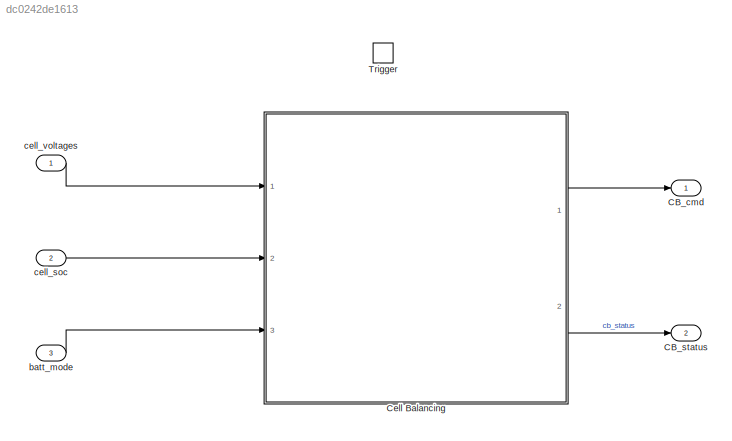
MODEL slx_dc0242de1613
KIND model
CONFIG AbsTol = auto
CONFIG FixedStep = cblk_stepSize
CONFIG MaxStep = auto
CONFIG MinStep = auto
CONFIG RelTol = 1e-3
CONFIG SampleTimeConstraint = Unconstrained
CONFIG Solver = FixedStepAuto
CONFIG SolverMode = Auto
CONFIG SolverName = FixedStepAuto
CONFIG StartTime = 0.0
CONFIG StopTime = 10.0
BLOCK [Outport] CB_cmd
  IconDisplay = Port number
BLOCK [Outport] CB_status
  IconDisplay = Port number
  Port = 2
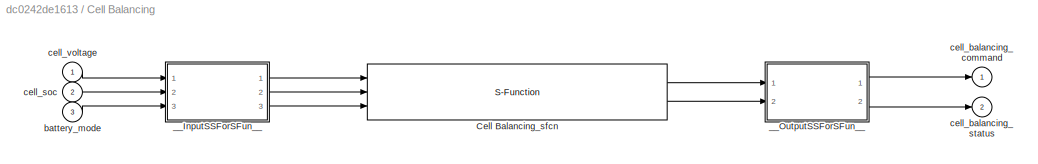
BLOCK [SubSystem] Cell Balancing
  Ports = [3, 2]
  RequestExecContextInheritance = off
  Variant = off
BLOCK [S-Function] Cell Balancing/Cell Balancing_sfcn
  CopyFcn = if ~strcmp(get_param(gcb,'Linkstatus'),'none') && ...\n~strcmp(get_param(gcb,'Linkstatus'),'implicit')      \n  set_param(gcb,'LinkStatus','none');                \nend
  EnableBusSupport = off
  FunctionName = Cell0_sf
  Parameters = sfcnParam1, sfcnParam2, sfcnParam3
  Ports = [3, 2]
  SFunctionDeploymentMode = off
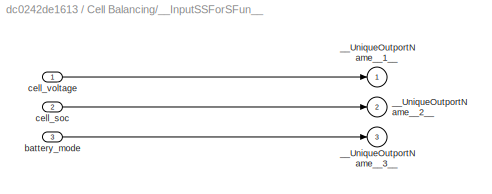
BLOCK [SubSystem] Cell Balancing/__InputSSForSFun__
  PermitHierarchicalResolution = ExplicitOnly
  Ports = [3, 3]
  RequestExecContextInheritance = off
  Variant = off
BLOCK [Outport] Cell Balancing/__InputSSForSFun__/__UniqueOutportName__1__
  IconDisplay = Port number
BLOCK [Outport] Cell Balancing/__InputSSForSFun__/__UniqueOutportName__2__
  IconDisplay = Port number
  Port = 2
BLOCK [Outport] Cell Balancing/__InputSSForSFun__/__UniqueOutportName__3__
  IconDisplay = Port number
  Port = 3
BLOCK [Inport] Cell Balancing/__InputSSForSFun__/battery_mode
  IconDisplay = Port number
  Port = 3
BLOCK [Inport] Cell Balancing/__InputSSForSFun__/cell_soc
  IconDisplay = Port number
  Port = 2
  PortDimensions = 40
BLOCK [Inport] Cell Balancing/__InputSSForSFun__/cell_voltage
  IconDisplay = Port number
  PortDimensions = 40
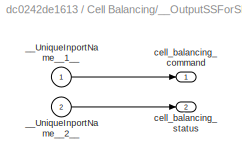
BLOCK [SubSystem] Cell Balancing/__OutputSSForSFun__
  PermitHierarchicalResolution = ExplicitOnly
  Ports = [2, 2]
  RequestExecContextInheritance = off
  Variant = off
BLOCK [Inport] Cell Balancing/__OutputSSForSFun__/__UniqueInportName__1__
  IconDisplay = Port number
BLOCK [Inport] Cell Balancing/__OutputSSForSFun__/__UniqueInportName__2__
  IconDisplay = Port number
  Port = 2
BLOCK [Outport] Cell Balancing/__OutputSSForSFun__/cell_balancing_command
  IconDisplay = Port number
BLOCK [Outport] Cell Balancing/__OutputSSForSFun__/cell_balancing_status
  IconDisplay = Port number
  Port = 2
BLOCK [Inport] Cell Balancing/battery_mode
  IconDisplay = Port number
  Port = 3
BLOCK [Outport] Cell Balancing/cell_balancing_command
  IconDisplay = Port number
BLOCK [Outport] Cell Balancing/cell_balancing_status
  IconDisplay = Port number
  Port = 2
BLOCK [Inport] Cell Balancing/cell_soc
  IconDisplay = Port number
  Port = 2
  PortDimensions = 40
BLOCK [Inport] Cell Balancing/cell_voltage
  IconDisplay = Port number
  PortDimensions = 40
BLOCK [TriggerPort] Trigger
  PortDimensions = 1
  Ports = []
  StatesWhenEnabling = held
  TriggerType = function-call
BLOCK [Inport] batt_mode
  IconDisplay = Port number
  OutDataTypeStr = uint8
  Port = 3
BLOCK [Inport] cell_soc
  IconDisplay = Port number
  Port = 2
BLOCK [Inport] cell_voltages
  IconDisplay = Port number
LINE Cell Balancing/Cell Balancing_sfcn:1 -> Cell Balancing/__OutputSSForSFun__:1
LINE Cell Balancing/Cell Balancing_sfcn:2 -> Cell Balancing/__OutputSSForSFun__:2
LINE Cell Balancing/__InputSSForSFun__/battery_mode:1 -> Cell Balancing/__InputSSForSFun__/__UniqueOutportName__3__:1
LINE Cell Balancing/__InputSSForSFun__/cell_soc:1 -> Cell Balancing/__InputSSForSFun__/__UniqueOutportName__2__:1
LINE Cell Balancing/__InputSSForSFun__/cell_voltage:1 -> Cell Balancing/__InputSSForSFun__/__UniqueOutportName__1__:1
LINE Cell Balancing/__InputSSForSFun__:1 -> Cell Balancing/Cell Balancing_sfcn:1
LINE Cell Balancing/__InputSSForSFun__:2 -> Cell Balancing/Cell Balancing_sfcn:2
LINE Cell Balancing/__InputSSForSFun__:3 -> Cell Balancing/Cell Balancing_sfcn:3
LINE Cell Balancing/__OutputSSForSFun__/__UniqueInportName__1__:1 -> Cell Balancing/__OutputSSForSFun__/cell_balancing_command:1
LINE Cell Balancing/__OutputSSForSFun__/__UniqueInportName__2__:1 -> Cell Balancing/__OutputSSForSFun__/cell_balancing_status:1
LINE Cell Balancing/__OutputSSForSFun__:1 -> Cell Balancing/cell_balancing_command:1
LINE Cell Balancing/__OutputSSForSFun__:2 -> Cell Balancing/cell_balancing_status:1
LINE Cell Balancing/battery_mode:1 -> Cell Balancing/__InputSSForSFun__:3
LINE Cell Balancing/cell_soc:1 -> Cell Balancing/__InputSSForSFun__:2
LINE Cell Balancing/cell_voltage:1 -> Cell Balancing/__InputSSForSFun__:1
LINE Cell Balancing:1 -> CB_cmd:1
LINE Cell Balancing:2 -> CB_status:1
LINE batt_mode:1 -> Cell Balancing:3
LINE cell_soc:1 -> Cell Balancing:2
LINE cell_voltages:1 -> Cell Balancing:1
